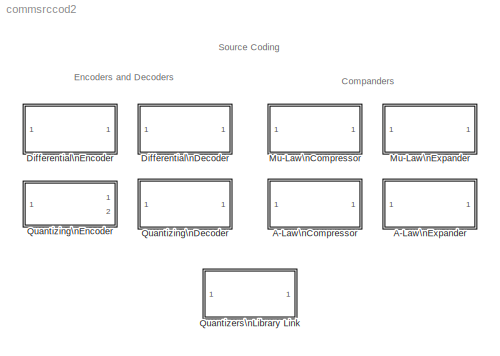
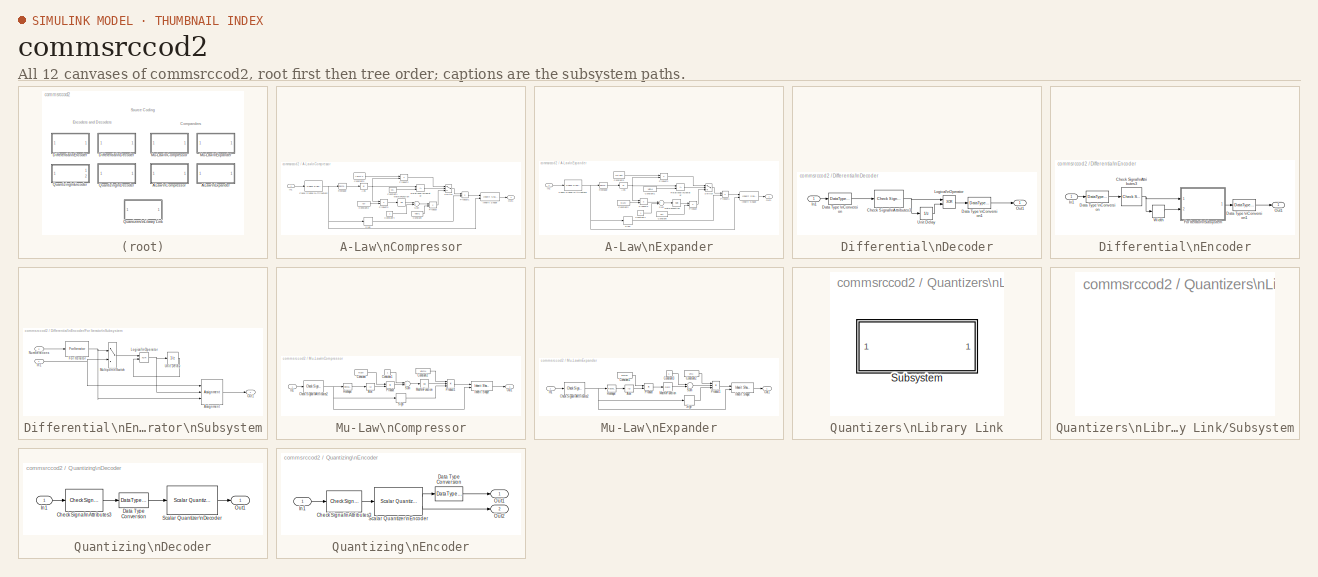
[diagram: thumbnail index - all 12 canvases of the model, root first then tree order]
MODEL commsrccod2
KIND library
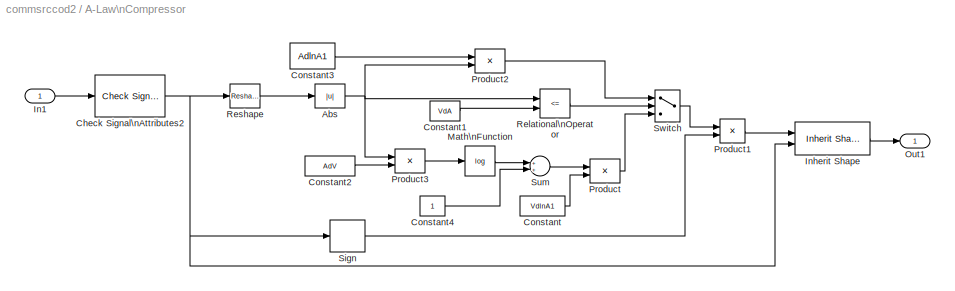
BLOCK [SubSystem] A-Law\nCompressor
  MaskCallbackString = |
  MaskDescription = Compress the input signal using A-law compression.\n\nThe input can have any shape or frame status. This block processes each vector element independently.
  MaskDisplay = disp('A-Law\\nCompressor')
  MaskEnableString = on,on
  MaskHelp = helpview(commbhelp)
  MaskIconFrame = on
  MaskIconOpaque = on
  MaskIconRotate = none
  MaskIconUnits = autoscale
  MaskInitialization = lnA1=log(A)+1;AdlnA1=A/lnA1;VdlnA1=V/lnA1;VdA=V/A;AdV=A/V;
  MaskPromptString = A value:|Peak signal magnitude:
  MaskStyleString = edit,edit
  MaskTabNameString = ,
  MaskToolTipString = on,on
  MaskTunableValueString = on,on
  MaskType = A-Law Compressor
  MaskValueString = 87.6|1
  MaskVarAliasString = ,
  MaskVariables = A=@1;V=@2;
  MaskVisibilityString = on,on
  MinAlgLoopOccurrences = off
  Ports = [1, 1]
  PropExecContextAcrossSSBoundary = on
  RTWSystemCode = Auto
  TreatAsAtomicUnit = off
BLOCK [Abs] A-Law\nCompressor/Abs
BLOCK [Reference] A-Law\nCompressor/Check Signal\nAttributes2  REF=dspsigattribs/Check Signal\nAttributes
  Complexity = Ignore
  DatatypeCheckMethod = Ignore
  DatatypeGeneral = Boolean
  Dimensions = Full matrix (2-D)
  DimsCheckMethod = Is...
  DtypeFixedSpecific = Any fixed-point
  DtypeFloatSpecific = Any floating-point
  DtypeIntSpecific = Any integer
  Frame = Ignore
  Ports = [1, 1]
  SampleMode = Ignore
  SigAttribCheckMethod = Matches attributes exactly
  SourceBlock = dspsigattribs/Check Signal\nAttributes
  SourceType = Check Signal Attributes
BLOCK [Constant] A-Law\nCompressor/Constant
  Value = VdlnA1
BLOCK [Constant] A-Law\nCompressor/Constant1
  Value = VdA
BLOCK [Constant] A-Law\nCompressor/Constant2
  Value = AdV
BLOCK [Constant] A-Law\nCompressor/Constant3
  Value = AdlnA1
BLOCK [Constant] A-Law\nCompressor/Constant4
BLOCK [Inport] A-Law\nCompressor/In1
  IconDisplay = Port number
  LatchInput = off
BLOCK [Reference] A-Law\nCompressor/Inherit Shape  REF=commblksprivate/Inherit Shape
  Ports = [2, 1]
  SourceBlock = commblksprivate/Inherit Shape
  SourceType = Inherit Shape
BLOCK [Math] A-Law\nCompressor/Math\nFunction
  Operator = log
  Ports = [1, 1]
BLOCK [Outport] A-Law\nCompressor/Out1
  BusOutputAsStruct = off
  IconDisplay = Port number
  InitialOutput = 0
BLOCK [Product] A-Law\nCompressor/Product
  Ports = [2, 1]
  RndMeth = Floor
BLOCK [Product] A-Law\nCompressor/Product1
  Ports = [2, 1]
  RndMeth = Floor
BLOCK [Product] A-Law\nCompressor/Product2
  Ports = [2, 1]
  RndMeth = Floor
BLOCK [Product] A-Law\nCompressor/Product3
  Ports = [2, 1]
  RndMeth = Floor
BLOCK [RelationalOperator] A-Law\nCompressor/Relational\nOperator
  LogicDataType = float('double')
  LogicOutDataTypeMode = Specify via dialog
  Operator = <=
BLOCK [Reference] A-Law\nCompressor/Reshape  REF=simulink/Math\nOperations/Reshape
  OutputDimensionality = 1-D array
  OutputDimensions = [1,1]
  Ports = [1, 1]
  SourceBlock = simulink/Math\nOperations/Reshape
  SourceType = Reshape
BLOCK [Signum] A-Law\nCompressor/Sign
BLOCK [Sum] A-Law\nCompressor/Sum
  Ports = [2, 1]
BLOCK [Switch] A-Law\nCompressor/Switch
  Threshold = .2
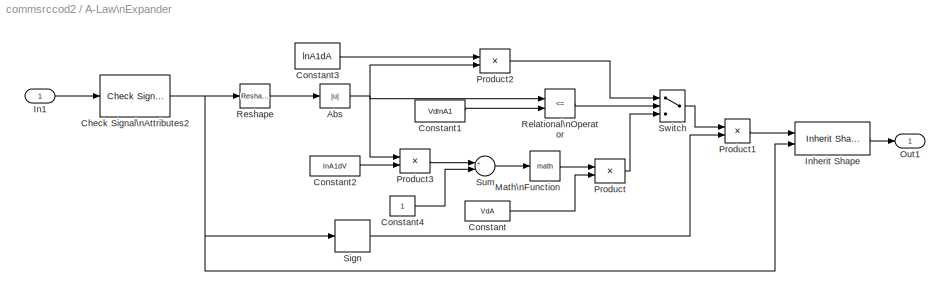
BLOCK [SubSystem] A-Law\nExpander
  MaskCallbackString = |
  MaskDescription = Expand the signal using inverse A-law compression.\n\nThe input can have any shape or frame status. This block processes each vector element independently.
  MaskDisplay = disp('A-Law\\nExpander')
  MaskEnableString = on,on
  MaskHelp = helpview(commbhelp)
  MaskIconFrame = on
  MaskIconOpaque = on
  MaskIconRotate = none
  MaskIconUnits = autoscale
  MaskInitialization = lnA1=log(A)+1;VdlnA1=V/lnA1;lnA1dA=lnA1/A;lnA1dV=lnA1/V;VdA=V/A;
  MaskPromptString = A value:|Peak signal magnitude:
  MaskStyleString = edit,edit
  MaskTabNameString = ,
  MaskToolTipString = on,on
  MaskTunableValueString = on,on
  MaskType = A-Law Expander
  MaskValueString = 87.6|1
  MaskVarAliasString = ,
  MaskVariables = A=@1;V=@2;
  MaskVisibilityString = on,on
  MinAlgLoopOccurrences = off
  Ports = [1, 1]
  PropExecContextAcrossSSBoundary = on
  RTWSystemCode = Auto
  TreatAsAtomicUnit = off
BLOCK [Abs] A-Law\nExpander/Abs
BLOCK [Reference] A-Law\nExpander/Check Signal\nAttributes2  REF=dspsigattribs/Check Signal\nAttributes
  Complexity = Ignore
  DatatypeCheckMethod = Ignore
  DatatypeGeneral = Boolean
  Dimensions = Full matrix (2-D)
  DimsCheckMethod = Is...
  DtypeFixedSpecific = Any fixed-point
  DtypeFloatSpecific = Any floating-point
  DtypeIntSpecific = Any integer
  Frame = Ignore
  Ports = [1, 1]
  SampleMode = Ignore
  SigAttribCheckMethod = Matches attributes exactly
  SourceBlock = dspsigattribs/Check Signal\nAttributes
  SourceType = Check Signal Attributes
BLOCK [Constant] A-Law\nExpander/Constant
  Value = VdA
BLOCK [Constant] A-Law\nExpander/Constant1
  Value = VdlnA1
BLOCK [Constant] A-Law\nExpander/Constant2
  Value = lnA1dV
BLOCK [Constant] A-Law\nExpander/Constant3
  Value = lnA1dA
BLOCK [Constant] A-Law\nExpander/Constant4
BLOCK [Inport] A-Law\nExpander/In1
  IconDisplay = Port number
  LatchInput = off
BLOCK [Reference] A-Law\nExpander/Inherit Shape  REF=commblksprivate/Inherit Shape
  Ports = [2, 1]
  SourceBlock = commblksprivate/Inherit Shape
  SourceType = Inherit Shape
BLOCK [Math] A-Law\nExpander/Math\nFunction
  Ports = [1, 1]
BLOCK [Outport] A-Law\nExpander/Out1
  BusOutputAsStruct = off
  IconDisplay = Port number
  InitialOutput = 0
BLOCK [Product] A-Law\nExpander/Product
  Ports = [2, 1]
  RndMeth = Floor
BLOCK [Product] A-Law\nExpander/Product1
  Ports = [2, 1]
  RndMeth = Floor
BLOCK [Product] A-Law\nExpander/Product2
  Ports = [2, 1]
  RndMeth = Floor
BLOCK [Product] A-Law\nExpander/Product3
  Ports = [2, 1]
  RndMeth = Floor
BLOCK [RelationalOperator] A-Law\nExpander/Relational\nOperator
  LogicDataType = float('double')
  LogicOutDataTypeMode = Specify via dialog
  Operator = <=
BLOCK [Reference] A-Law\nExpander/Reshape  REF=simulink/Math\nOperations/Reshape
  OutputDimensionality = 1-D array
  OutputDimensions = [1,1]
  Ports = [1, 1]
  SourceBlock = simulink/Math\nOperations/Reshape
  SourceType = Reshape
BLOCK [Signum] A-Law\nExpander/Sign
BLOCK [Sum] A-Law\nExpander/Sum
  Inputs = +-
  Ports = [2, 1]
BLOCK [Switch] A-Law\nExpander/Switch
  Threshold = .2
BLOCK [SubSystem] Differential\nDecoder
  MaskDescription = Differentially decode the input data.\n\nThe output of this block is the logical difference between the present input to this block and the previous input of this block.\n\nThe input can be either a scalar or a vector.
  MaskDisplay = disp('Differential\\nDecoder')
  MaskEnableString = on
  MaskHelp = helpview(commbhelp)
  MaskIconFrame = on
  MaskIconOpaque = on
  MaskIconRotate = none
  MaskIconUnits = autoscale
  MaskPromptString = Initial condition:
  MaskStyleString = edit
  MaskToolTipString = on
  MaskTunableValueString = on
  MaskType = Differential Decoder
  MaskValueString = 0
  MaskVariables = InitCond=@1;
  MaskVisibilityString = on
  MinAlgLoopOccurrences = off
  Ports = [1, 1]
  PropExecContextAcrossSSBoundary = on
  RTWSystemCode = Auto
  TreatAsAtomicUnit = off
BLOCK [Reference] Differential\nDecoder/Check Signal\nAttributes3  REF=dspsigattribs/Check Signal\nAttributes
  Complexity = Ignore
  DatatypeCheckMethod = Ignore
  DatatypeGeneral = Boolean
  Dimensions = Full matrix (2-D)
  DimsCheckMethod = Is...
  DtypeFixedSpecific = Any fixed-point
  DtypeFloatSpecific = Any floating-point
  DtypeIntSpecific = Any integer
  Frame = Ignore
  Ports = [1, 1]
  SampleMode = Ignore
  SigAttribCheckMethod = Matches attributes exactly
  SourceBlock = dspsigattribs/Check Signal\nAttributes
  SourceType = Check Signal Attributes
BLOCK [DataTypeConversion] Differential\nDecoder/Data Type \nConversion
  OutDataTypeMode = boolean
BLOCK [DataTypeConversion] Differential\nDecoder/Data Type \nConversion1
  OutDataTypeMode = double
BLOCK [Inport] Differential\nDecoder/In1
  IconDisplay = Port number
  LatchInput = off
BLOCK [Logic] Differential\nDecoder/Logical\nOperator
  LogicDataType = float('double')
  Operator = XOR
  Ports = [2, 1]
BLOCK [Outport] Differential\nDecoder/Out1
  BusOutputAsStruct = off
  IconDisplay = Port number
  InitialOutput = 0
BLOCK [UnitDelay] Differential\nDecoder/Unit Delay
  SampleTime = -1
  X0 = InitCond
BLOCK [SubSystem] Differential\nEncoder
  MaskDescription = Differentially encode the input data.\n\nThe output of this block is the logical difference between the present input to this block and the previous output of this block.\n\nThe input can be either a scalar or a vector.
  MaskDisplay = disp('Differential\\nEncoder')
  MaskEnableString = on
  MaskHelp = helpview(commbhelp)
  MaskIconFrame = on
  MaskIconOpaque = on
  MaskIconRotate = none
  MaskIconUnits = autoscale
  MaskPromptString = Initial condition:
  MaskStyleString = edit
  MaskToolTipString = on
  MaskTunableValueString = on
  MaskType = Differential Encoder
  MaskValueString = 0
  MaskVariables = InitCond=@1;
  MaskVisibilityString = on
  MinAlgLoopOccurrences = off
  Ports = [1, 1]
  PropExecContextAcrossSSBoundary = on
  RTWSystemCode = Auto
  TreatAsAtomicUnit = off
BLOCK [Reference] Differential\nEncoder/Check Signal\nAttributes3  REF=dspsigattribs/Check Signal\nAttributes
  Complexity = Ignore
  DatatypeCheckMethod = Ignore
  DatatypeGeneral = Boolean
  Dimensions = Full matrix (2-D)
  DimsCheckMethod = Is...
  DtypeFixedSpecific = Any fixed-point
  DtypeFloatSpecific = Any floating-point
  DtypeIntSpecific = Any integer
  Frame = Ignore
  Ports = [1, 1]
  SampleMode = Ignore
  SigAttribCheckMethod = Matches attributes exactly
  SourceBlock = dspsigattribs/Check Signal\nAttributes
  SourceType = Check Signal Attributes
BLOCK [DataTypeConversion] Differential\nEncoder/Data Type \nConversion
  OutDataTypeMode = boolean
BLOCK [DataTypeConversion] Differential\nEncoder/Data Type \nConversion1
  OutDataTypeMode = double
BLOCK [SubSystem] Differential\nEncoder/For Iterator\nSubsystem
  MinAlgLoopOccurrences = off
  Ports = [2, 1]
  PropExecContextAcrossSSBoundary = on
  RTWSystemCode = Auto
  TreatAsAtomicUnit = on
BLOCK [Assignment] Differential\nEncoder/For Iterator\nSubsystem/Assignment
  ElementSrc = External
  Ports = [3, 1]
BLOCK [ForIterator] Differential\nEncoder/For Iterator\nSubsystem/For Iterator
  IterationSource = external
  Ports = [1, 1]
BLOCK [Inport] Differential\nEncoder/For Iterator\nSubsystem/In1
  IconDisplay = Port number
  LatchInput = off
BLOCK [Logic] Differential\nEncoder/For Iterator\nSubsystem/Logical\nOperator
  AllPortsSameDT = off
  Operator = XOR
  Ports = [2, 1]
BLOCK [MultiPortSwitch] Differential\nEncoder/For Iterator\nSubsystem/Multiport\nSwitch
  InputSameDT = off
  Inputs = 1
  Ports = [2, 1]
BLOCK [Inport] Differential\nEncoder/For Iterator\nSubsystem/NumIterations
  IconDisplay = Port number
  LatchInput = off
  Port = 2
BLOCK [Outport] Differential\nEncoder/For Iterator\nSubsystem/Out1
  BusOutputAsStruct = off
  IconDisplay = Port number
BLOCK [UnitDelay] Differential\nEncoder/For Iterator\nSubsystem/Unit Delay
  SampleTime = -1
  X0 = InitCond
BLOCK [Inport] Differential\nEncoder/In1
  IconDisplay = Port number
  LatchInput = off
BLOCK [Outport] Differential\nEncoder/Out1
  BusOutputAsStruct = off
  IconDisplay = Port number
BLOCK [Width] Differential\nEncoder/Width
BLOCK [SubSystem] Mu-Law\nCompressor
  MaskCallbackString = |
  MaskDescription = Compress the input signal using mu-law compression.\n\nThe input can have any shape or frame status. This block processes each vector element independently.
  MaskDisplay = disp('Mu-Law\\nCompressor')
  MaskEnableString = on,on
  MaskHelp = helpview(commbhelp)
  MaskIconFrame = on
  MaskIconOpaque = on
  MaskIconRotate = none
  MaskIconUnits = autoscale
  MaskInitialization = mudV=mu/V;Vln1mu=V/log(1+mu);
  MaskPromptString = mu value:|Peak signal magnitude:
  MaskStyleString = edit,edit
  MaskTabNameString = ,
  MaskToolTipString = on,on
  MaskTunableValueString = on,on
  MaskType = Mu-Law Compressor
  MaskValueString = 255|1
  MaskVarAliasString = ,
  MaskVariables = mu=@1;V=@2;
  MaskVisibilityString = on,on
  MinAlgLoopOccurrences = off
  Ports = [1, 1]
  PropExecContextAcrossSSBoundary = on
  RTWSystemCode = Auto
  TreatAsAtomicUnit = off
BLOCK [Abs] Mu-Law\nCompressor/Abs
BLOCK [Reference] Mu-Law\nCompressor/Check Signal\nAttributes2  REF=dspsigattribs/Check Signal\nAttributes
  Complexity = Ignore
  DatatypeCheckMethod = Ignore
  DatatypeGeneral = Boolean
  Dimensions = Full matrix (2-D)
  DimsCheckMethod = Is...
  DtypeFixedSpecific = Any fixed-point
  DtypeFloatSpecific = Any floating-point
  DtypeIntSpecific = Any integer
  Frame = Ignore
  Ports = [1, 1]
  SampleMode = Ignore
  SigAttribCheckMethod = Matches attributes exactly
  SourceBlock = dspsigattribs/Check Signal\nAttributes
  SourceType = Check Signal Attributes
BLOCK [Constant] Mu-Law\nCompressor/Constant
  Value = mudV
BLOCK [Constant] Mu-Law\nCompressor/Constant1
BLOCK [Constant] Mu-Law\nCompressor/Constant2
  Value = Vln1mu
BLOCK [Inport] Mu-Law\nCompressor/In1
  IconDisplay = Port number
  LatchInput = off
BLOCK [Reference] Mu-Law\nCompressor/Inherit Shape  REF=commblksprivate/Inherit Shape
  Ports = [2, 1]
  SourceBlock = commblksprivate/Inherit Shape
  SourceType = Inherit Shape
BLOCK [Math] Mu-Law\nCompressor/Math\nFunction
  Operator = log
  Ports = [1, 1]
BLOCK [Outport] Mu-Law\nCompressor/Out1
  BusOutputAsStruct = off
  IconDisplay = Port number
  InitialOutput = 0
BLOCK [Product] Mu-Law\nCompressor/Product
  Ports = [2, 1]
  RndMeth = Floor
BLOCK [Product] Mu-Law\nCompressor/Product1
  Inputs = 3
  Ports = [3, 1]
  RndMeth = Floor
BLOCK [Reference] Mu-Law\nCompressor/Reshape  REF=simulink/Math\nOperations/Reshape
  OutputDimensionality = 1-D array
  OutputDimensions = [1,1]
  Ports = [1, 1]
  SourceBlock = simulink/Math\nOperations/Reshape
  SourceType = Reshape
BLOCK [Signum] Mu-Law\nCompressor/Sign
BLOCK [Sum] Mu-Law\nCompressor/Sum
  Ports = [2, 1]
BLOCK [SubSystem] Mu-Law\nExpander
  MaskCallbackString = |
  MaskDescription = Expand the signal using inverse mu-law compression.\n\nThe input can have any shape or frame status. This block processes each vector element independently.
  MaskDisplay = disp('Mu-Law\\nExpander')
  MaskEnableString = on,on
  MaskHelp = helpview(commbhelp)
  MaskIconFrame = on
  MaskIconOpaque = on
  MaskIconRotate = none
  MaskIconUnits = autoscale
  MaskInitialization = Vmu=V/mu;ln1mdV=log(1+mu)/V;
  MaskPromptString = mu value:|Peak signal magnitude:
  MaskStyleString = edit,edit
  MaskTabNameString = ,
  MaskToolTipString = on,on
  MaskTunableValueString = on,on
  MaskType = Mu-Law Expander
  MaskValueString = 255|1
  MaskVarAliasString = ,
  MaskVariables = mu=@1;V=@2;
  MaskVisibilityString = on,on
  MinAlgLoopOccurrences = off
  Ports = [1, 1]
  PropExecContextAcrossSSBoundary = on
  RTWSystemCode = Auto
  TreatAsAtomicUnit = off
BLOCK [Abs] Mu-Law\nExpander/Abs
BLOCK [Reference] Mu-Law\nExpander/Check Signal\nAttributes2  REF=dspsigattribs/Check Signal\nAttributes
  Complexity = Ignore
  DatatypeCheckMethod = Ignore
  DatatypeGeneral = Boolean
  Dimensions = Full matrix (2-D)
  DimsCheckMethod = Is...
  DtypeFixedSpecific = Any fixed-point
  DtypeFloatSpecific = Any floating-point
  DtypeIntSpecific = Any integer
  Frame = Ignore
  Ports = [1, 1]
  SampleMode = Ignore
  SigAttribCheckMethod = Matches attributes exactly
  SourceBlock = dspsigattribs/Check Signal\nAttributes
  SourceType = Check Signal Attributes
BLOCK [Constant] Mu-Law\nExpander/Constant1
  Value = ln1mdV
BLOCK [Constant] Mu-Law\nExpander/Constant2
  Value = Vmu
BLOCK [Constant] Mu-Law\nExpander/Constant3
BLOCK [Inport] Mu-Law\nExpander/In1
  IconDisplay = Port number
  LatchInput = off
BLOCK [Reference] Mu-Law\nExpander/Inherit Shape  REF=commblksprivate/Inherit Shape
  Ports = [2, 1]
  SourceBlock = commblksprivate/Inherit Shape
  SourceType = Inherit Shape
BLOCK [Math] Mu-Law\nExpander/Math\nFunction
  Ports = [1, 1]
BLOCK [Outport] Mu-Law\nExpander/Out1
  BusOutputAsStruct = off
  IconDisplay = Port number
  InitialOutput = 0
BLOCK [Product] Mu-Law\nExpander/Product
  Ports = [2, 1]
  RndMeth = Floor
BLOCK [Product] Mu-Law\nExpander/Product1
  Inputs = 3
  Ports = [3, 1]
  RndMeth = Floor
BLOCK [Reference] Mu-Law\nExpander/Reshape  REF=simulink/Math\nOperations/Reshape
  OutputDimensionality = 1-D array
  OutputDimensions = [1,1]
  Ports = [1, 1]
  SourceBlock = simulink/Math\nOperations/Reshape
  SourceType = Reshape
BLOCK [Signum] Mu-Law\nExpander/Sign
BLOCK [Sum] Mu-Law\nExpander/Sum
  Inputs = -+
  Ports = [2, 1]
BLOCK [SubSystem] Quantizers\nLibrary Link
  MaskDisplay = disp('Quantizers\\nLibrary Link');
  MaskEnableString = off
  MaskIconFrame = on
  MaskIconOpaque = on
  MaskIconRotate = none
  MaskIconUnits = normalized
  MaskPromptString = option:
  MaskStyleString = edit
  MaskToolTipString = on
  MaskTunableValueString = on
  MaskValueString = 0
  MaskVariables = myQuantParam=@1;
  MaskVisibilityString = off
  MinAlgLoopOccurrences = off
  OpenFcn = commblkmorequant('dspquant');
  Ports = []
  PropExecContextAcrossSSBoundary = on
  RTWSystemCode = Auto
  TreatAsAtomicUnit = off
BLOCK [SubSystem] Quantizers\nLibrary Link/Subsystem
  MaskDisplay = disp(' ')
  MaskIconFrame = off
  MaskIconOpaque = on
  MaskIconRotate = none
  MaskIconUnits = autoscale
  MinAlgLoopOccurrences = off
  Ports = []
  PropExecContextAcrossSSBoundary = on
  RTWSystemCode = Auto
  TreatAsAtomicUnit = off
BLOCK [SubSystem] Quantizing\nDecoder
  MaskDescription = Decode the quantizer encoded index using a codebook.\n\nThe input signal is the index from the Quantization codebook vector.  The input signal to be quantized can be either a scalar or a vector.  \n\nThe output signal is the quantized signal.  The values for the quantized signal are taken from the Quantization codebook vector.
  MaskDisplay = disp('Quantizing\\nDecoder')\nport_label('input',1, 'Idx');\nport_label('output',1,'Q(U)');
  MaskEnableString = on
  MaskHelp = helpview(commbhelp)
  MaskIconFrame = on
  MaskIconOpaque = on
  MaskIconRotate = none
  MaskIconUnits = autoscale
  MaskPromptString = Quantization codebook:
  MaskStyleString = edit
  MaskToolTipString = on
  MaskTunableValueString = on
  MaskType = Quantizing Decoder
  MaskValueString = [-.825 -.5 0, .5 .825]
  MaskVariables = codebook=@1;
  MaskVisibilityString = on
  MinAlgLoopOccurrences = off
  Ports = [1, 1]
  PropExecContextAcrossSSBoundary = on
  RTWSystemCode = Auto
  TreatAsAtomicUnit = off
BLOCK [Reference] Quantizing\nDecoder/Check Signal\nAttributes3  REF=dspsigattribs/Check Signal\nAttributes
  Complexity = Ignore
  DatatypeCheckMethod = Ignore
  DatatypeGeneral = Boolean
  Dimensions = Full matrix (2-D)
  DimsCheckMethod = Is...
  DtypeFixedSpecific = Any fixed-point
  DtypeFloatSpecific = Any floating-point
  DtypeIntSpecific = Any integer
  Frame = Ignore
  Ports = [1, 1]
  SampleMode = Ignore
  ShowPortLabels = on
  SigAttribCheckMethod = Matches attributes exactly
  SourceBlock = dspsigattribs/Check Signal\nAttributes
  SourceType = Check Signal Attributes
BLOCK [DataTypeConversion] Quantizing\nDecoder/Data Type Conversion
  OutDataTypeMode = uint32
BLOCK [Inport] Quantizing\nDecoder/In1
  IconDisplay = Port number
  LatchInput = off
BLOCK [Outport] Quantizing\nDecoder/Out1
  BusOutputAsStruct = off
  IconDisplay = Port number
  InitialOutput = 0
BLOCK [Reference] Quantizing\nDecoder/Scalar Quantizer\nDecoder  REF=dspquant2/Scalar Quantizer\nDecoder
  CBsource = Specify via dialog
  Ports = [1, 1]
  SourceBlock = dspquant2/Scalar Quantizer\nDecoder
  SourceType = Scalar Quantizer Decoder
  codebook = codebook
  dataType = double
  fracBitsMode = Best precision
  invalidin = Clip
  isSigned = on
  numFracBits = 11
  udDataType = sfix(16)
  wordLen = 16
BLOCK [SubSystem] Quantizing\nEncoder
  MaskCallbackString = |
  MaskDescription = Quantize the input signal using a partition and a codebook.\n\nThe input signal is quantized according to the Quantization partition vector and encoded according to the Quantization codebook vector.  The input signal to be quantized can be either a scalar or a vector.  \n\nThe first output is the index from the Quantization codebook vector. The second output is the quantized signal.  The values fo...<+71ch>
  MaskDisplay = disp('Quantizing\\nEncoder')\nport_label('input',1, 'U');\nport_label('output',1, 'Idx');\nport_label('output',2,'Q(U)');
  MaskEnableString = on,on
  MaskHelp = helpview(commbhelp)
  MaskIconFrame = on
  MaskIconOpaque = on
  MaskIconRotate = none
  MaskIconUnits = autoscale
  MaskInitialization = wsv=get_param(gcb,'MaskWSVariables');\npartition = wsv(1).Value;\ncodebook =  wsv(2).Value;\n\npartSize = size(partition);\nCodeBkSize = size(codebook);\nif((partSize(1) ~= 1) && (CodeBkSize(1) ~= 1))\n	error('The partition and the codebook must be row vectors.');\nend\n\nif(partSize(2) ~= CodeBkSize(2)-1)\n	error('The length of the partition vector must be one less than the length of the codebook...<+20ch>
  MaskPromptString = Quantization partition:|Quantization codebook:
  MaskStyleString = edit,edit
  MaskTabNameString = ,
  MaskToolTipString = on,on
  MaskTunableValueString = on,on
  MaskType = Quantizing Encoder
  MaskValueString = [-.75 -.25 .25 .75]|[-.825 -.5 0 .5 .825]
  MaskVarAliasString = ,
  MaskVariables = partition=@1;codebook=@2;
  MaskVisibilityString = on,on
  MinAlgLoopOccurrences = off
  Ports = [1, 2]
  PropExecContextAcrossSSBoundary = on
  RTWSystemCode = Auto
  TreatAsAtomicUnit = off
BLOCK [Reference] Quantizing\nEncoder/Check Signal\nAttributes3  REF=dspsigattribs/Check Signal\nAttributes
  Complexity = Ignore
  DatatypeCheckMethod = Ignore
  DatatypeGeneral = Boolean
  Dimensions = Full matrix (2-D)
  DimsCheckMethod = Is...
  DtypeFixedSpecific = Any fixed-point
  DtypeFloatSpecific = Any floating-point
  DtypeIntSpecific = Any integer
  Frame = Ignore
  Ports = [1, 1]
  SampleMode = Ignore
  ShowPortLabels = on
  SigAttribCheckMethod = Matches attributes exactly
  SourceBlock = dspsigattribs/Check Signal\nAttributes
  SourceType = Check Signal Attributes
BLOCK [DataTypeConversion] Quantizing\nEncoder/Data Type Conversion
  OutDataTypeMode = double
BLOCK [Inport] Quantizing\nEncoder/In1
  IconDisplay = Port number
  LatchInput = off
BLOCK [Outport] Quantizing\nEncoder/Out1
  BusOutputAsStruct = off
  IconDisplay = Port number
  InitialOutput = 0
BLOCK [Outport] Quantizing\nEncoder/Out2
  BusOutputAsStruct = off
  IconDisplay = Port number
  InitialOutput = 0
  Port = 2
BLOCK [Reference] Quantizing\nEncoder/Scalar Quantizer\nEncoder  REF=dspquant2/Scalar Quantizer\nEncoder
  BBoundary = [1:10]
  Ports = [1, 2]
  SearchMethod = Linear
  SourceBlock = dspquant2/Scalar Quantizer\nEncoder
  SourceType = Scalar Quantizer Encoder
  UBoundary = partition
  additionalParams = off
  allowOverrides = on
  codebook = codebook
  idtype = int32
  invalidin = Clip
  outQError = off
  outQU = on
  outStatus = off
  overflowMode = off
  paramSrc = Specify via dialog
  partType = Unbounded
  roundingMode = Floor
  tieBreakRule = Choose the lower index
ANNOTATION (root): Companders
ANNOTATION (root): Encoders and Decoders
ANNOTATION (root): Source Coding
NET A-Law\nCompressor/Abs:1 -> A-Law\nCompressor/Product2:2, A-Law\nCompressor/Product3:1, A-Law\nCompressor/Relational\nOperator:1
NET A-Law\nCompressor/Check Signal\nAttributes2:1 -> A-Law\nCompressor/Inherit Shape:2, A-Law\nCompressor/Reshape:1, A-Law\nCompressor/Sign:1
LINE A-Law\nCompressor/Constant1:1 -> A-Law\nCompressor/Relational\nOperator:2
LINE A-Law\nCompressor/Constant2:1 -> A-Law\nCompressor/Product3:2
LINE A-Law\nCompressor/Constant3:1 -> A-Law\nCompressor/Product2:1
LINE A-Law\nCompressor/Constant4:1 -> A-Law\nCompressor/Sum:2
LINE A-Law\nCompressor/Constant:1 -> A-Law\nCompressor/Product:2
LINE A-Law\nCompressor/In1:1 -> A-Law\nCompressor/Check Signal\nAttributes2:1
LINE A-Law\nCompressor/Inherit Shape:1 -> A-Law\nCompressor/Out1:1
LINE A-Law\nCompressor/Math\nFunction:1 -> A-Law\nCompressor/Sum:1
LINE A-Law\nCompressor/Product1:1 -> A-Law\nCompressor/Inherit Shape:1
LINE A-Law\nCompressor/Product2:1 -> A-Law\nCompressor/Switch:1
LINE A-Law\nCompressor/Product3:1 -> A-Law\nCompressor/Math\nFunction:1
LINE A-Law\nCompressor/Product:1 -> A-Law\nCompressor/Switch:3
LINE A-Law\nCompressor/Relational\nOperator:1 -> A-Law\nCompressor/Switch:2
LINE A-Law\nCompressor/Reshape:1 -> A-Law\nCompressor/Abs:1
LINE A-Law\nCompressor/Sign:1 -> A-Law\nCompressor/Product1:2
LINE A-Law\nCompressor/Sum:1 -> A-Law\nCompressor/Product:1
LINE A-Law\nCompressor/Switch:1 -> A-Law\nCompressor/Product1:1
NET A-Law\nExpander/Abs:1 -> A-Law\nExpander/Product2:2, A-Law\nExpander/Product3:1, A-Law\nExpander/Relational\nOperator:1
NET A-Law\nExpander/Check Signal\nAttributes2:1 -> A-Law\nExpander/Inherit Shape:2, A-Law\nExpander/Reshape:1, A-Law\nExpander/Sign:1
LINE A-Law\nExpander/Constant1:1 -> A-Law\nExpander/Relational\nOperator:2
LINE A-Law\nExpander/Constant2:1 -> A-Law\nExpander/Product3:2
LINE A-Law\nExpander/Constant3:1 -> A-Law\nExpander/Product2:1
LINE A-Law\nExpander/Constant4:1 -> A-Law\nExpander/Sum:2
LINE A-Law\nExpander/Constant:1 -> A-Law\nExpander/Product:2
LINE A-Law\nExpander/In1:1 -> A-Law\nExpander/Check Signal\nAttributes2:1
LINE A-Law\nExpander/Inherit Shape:1 -> A-Law\nExpander/Out1:1
LINE A-Law\nExpander/Math\nFunction:1 -> A-Law\nExpander/Product:1
LINE A-Law\nExpander/Product1:1 -> A-Law\nExpander/Inherit Shape:1
LINE A-Law\nExpander/Product2:1 -> A-Law\nExpander/Switch:1
LINE A-Law\nExpander/Product3:1 -> A-Law\nExpander/Sum:1
LINE A-Law\nExpander/Product:1 -> A-Law\nExpander/Switch:3
LINE A-Law\nExpander/Relational\nOperator:1 -> A-Law\nExpander/Switch:2
LINE A-Law\nExpander/Reshape:1 -> A-Law\nExpander/Abs:1
LINE A-Law\nExpander/Sign:1 -> A-Law\nExpander/Product1:2
LINE A-Law\nExpander/Sum:1 -> A-Law\nExpander/Math\nFunction:1
LINE A-Law\nExpander/Switch:1 -> A-Law\nExpander/Product1:1
NET Differential\nDecoder/Check Signal\nAttributes3:1 -> Differential\nDecoder/Logical\nOperator:1, Differential\nDecoder/Unit Delay:1
LINE Differential\nDecoder/Data Type \nConversion1:1 -> Differential\nDecoder/Out1:1
LINE Differential\nDecoder/Data Type \nConversion:1 -> Differential\nDecoder/Check Signal\nAttributes3:1
LINE Differential\nDecoder/In1:1 -> Differential\nDecoder/Data Type \nConversion:1
LINE Differential\nDecoder/Logical\nOperator:1 -> Differential\nDecoder/Data Type \nConversion1:1
LINE Differential\nDecoder/Unit Delay:1 -> Differential\nDecoder/Logical\nOperator:2
NET Differential\nEncoder/Check Signal\nAttributes3:1 -> Differential\nEncoder/For Iterator\nSubsystem:1, Differential\nEncoder/Width:1
LINE Differential\nEncoder/Data Type \nConversion1:1 -> Differential\nEncoder/Out1:1
LINE Differential\nEncoder/Data Type \nConversion:1 -> Differential\nEncoder/Check Signal\nAttributes3:1
LINE Differential\nEncoder/For Iterator\nSubsystem/Assignment:1 -> Differential\nEncoder/For Iterator\nSubsystem/Out1:1
NET Differential\nEncoder/For Iterator\nSubsystem/For Iterator:1 -> Differential\nEncoder/For Iterator\nSubsystem/Assignment:3, Differential\nEncoder/For Iterator\nSubsystem/Multiport\nSwitch:1
NET Differential\nEncoder/For Iterator\nSubsystem/In1:1 -> Differential\nEncoder/For Iterator\nSubsystem/Assignment:1, Differential\nEncoder/For Iterator\nSubsystem/Multiport\nSwitch:2
NET Differential\nEncoder/For Iterator\nSubsystem/Logical\nOperator:1 -> Differential\nEncoder/For Iterator\nSubsystem/Assignment:2, Differential\nEncoder/For Iterator\nSubsystem/Unit Delay:1
LINE Differential\nEncoder/For Iterator\nSubsystem/Multiport\nSwitch:1 -> Differential\nEncoder/For Iterator\nSubsystem/Logical\nOperator:1
LINE Differential\nEncoder/For Iterator\nSubsystem/NumIterations:1 -> Differential\nEncoder/For Iterator\nSubsystem/For Iterator:1
LINE Differential\nEncoder/For Iterator\nSubsystem/Unit Delay:1 -> Differential\nEncoder/For Iterator\nSubsystem/Logical\nOperator:2
LINE Differential\nEncoder/For Iterator\nSubsystem:1 -> Differential\nEncoder/Data Type \nConversion1:1
LINE Differential\nEncoder/In1:1 -> Differential\nEncoder/Data Type \nConversion:1
LINE Differential\nEncoder/Width:1 -> Differential\nEncoder/For Iterator\nSubsystem:2
LINE Mu-Law\nCompressor/Abs:1 -> Mu-Law\nCompressor/Product:2
NET Mu-Law\nCompressor/Check Signal\nAttributes2:1 -> Mu-Law\nCompressor/Inherit Shape:2, Mu-Law\nCompressor/Reshape:1, Mu-Law\nCompressor/Sign:1
LINE Mu-Law\nCompressor/Constant1:1 -> Mu-Law\nCompressor/Sum:1
LINE Mu-Law\nCompressor/Constant2:1 -> Mu-Law\nCompressor/Product1:1
LINE Mu-Law\nCompressor/Constant:1 -> Mu-Law\nCompressor/Product:1
LINE Mu-Law\nCompressor/In1:1 -> Mu-Law\nCompressor/Check Signal\nAttributes2:1
LINE Mu-Law\nCompressor/Inherit Shape:1 -> Mu-Law\nCompressor/Out1:1
LINE Mu-Law\nCompressor/Math\nFunction:1 -> Mu-Law\nCompressor/Product1:2
LINE Mu-Law\nCompressor/Product1:1 -> Mu-Law\nCompressor/Inherit Shape:1
LINE Mu-Law\nCompressor/Product:1 -> Mu-Law\nCompressor/Sum:2
LINE Mu-Law\nCompressor/Reshape:1 -> Mu-Law\nCompressor/Abs:1
LINE Mu-Law\nCompressor/Sign:1 -> Mu-Law\nCompressor/Product1:3
LINE Mu-Law\nCompressor/Sum:1 -> Mu-Law\nCompressor/Math\nFunction:1
LINE Mu-Law\nExpander/Abs:1 -> Mu-Law\nExpander/Product:2
NET Mu-Law\nExpander/Check Signal\nAttributes2:1 -> Mu-Law\nExpander/Inherit Shape:2, Mu-Law\nExpander/Reshape:1, Mu-Law\nExpander/Sign:1
LINE Mu-Law\nExpander/Constant1:1 -> Mu-Law\nExpander/Product:1
LINE Mu-Law\nExpander/Constant2:1 -> Mu-Law\nExpander/Product1:1
LINE Mu-Law\nExpander/Constant3:1 -> Mu-Law\nExpander/Sum:1
LINE Mu-Law\nExpander/In1:1 -> Mu-Law\nExpander/Check Signal\nAttributes2:1
LINE Mu-Law\nExpander/Inherit Shape:1 -> Mu-Law\nExpander/Out1:1
LINE Mu-Law\nExpander/Math\nFunction:1 -> Mu-Law\nExpander/Sum:2
LINE Mu-Law\nExpander/Product1:1 -> Mu-Law\nExpander/Inherit Shape:1
LINE Mu-Law\nExpander/Product:1 -> Mu-Law\nExpander/Math\nFunction:1
LINE Mu-Law\nExpander/Reshape:1 -> Mu-Law\nExpander/Abs:1
LINE Mu-Law\nExpander/Sign:1 -> Mu-Law\nExpander/Product1:3
LINE Mu-Law\nExpander/Sum:1 -> Mu-Law\nExpander/Product1:2
LINE Quantizing\nDecoder/Check Signal\nAttributes3:1 -> Quantizing\nDecoder/Data Type Conversion:1
LINE Quantizing\nDecoder/Data Type Conversion:1 -> Quantizing\nDecoder/Scalar Quantizer\nDecoder:1
LINE Quantizing\nDecoder/In1:1 -> Quantizing\nDecoder/Check Signal\nAttributes3:1
LINE Quantizing\nDecoder/Scalar Quantizer\nDecoder:1 -> Quantizing\nDecoder/Out1:1
LINE Quantizing\nEncoder/Check Signal\nAttributes3:1 -> Quantizing\nEncoder/Scalar Quantizer\nEncoder:1
LINE Quantizing\nEncoder/Data Type Conversion:1 -> Quantizing\nEncoder/Out1:1
LINE Quantizing\nEncoder/In1:1 -> Quantizing\nEncoder/Check Signal\nAttributes3:1
LINE Quantizing\nEncoder/Scalar Quantizer\nEncoder:1 -> Quantizing\nEncoder/Data Type Conversion:1
LINE Quantizing\nEncoder/Scalar Quantizer\nEncoder:2 -> Quantizing\nEncoder/Out2:1
note: NET lines group one-source signal fan-out (src -> all destinations, sorted); 1:1 wires keep LINE
